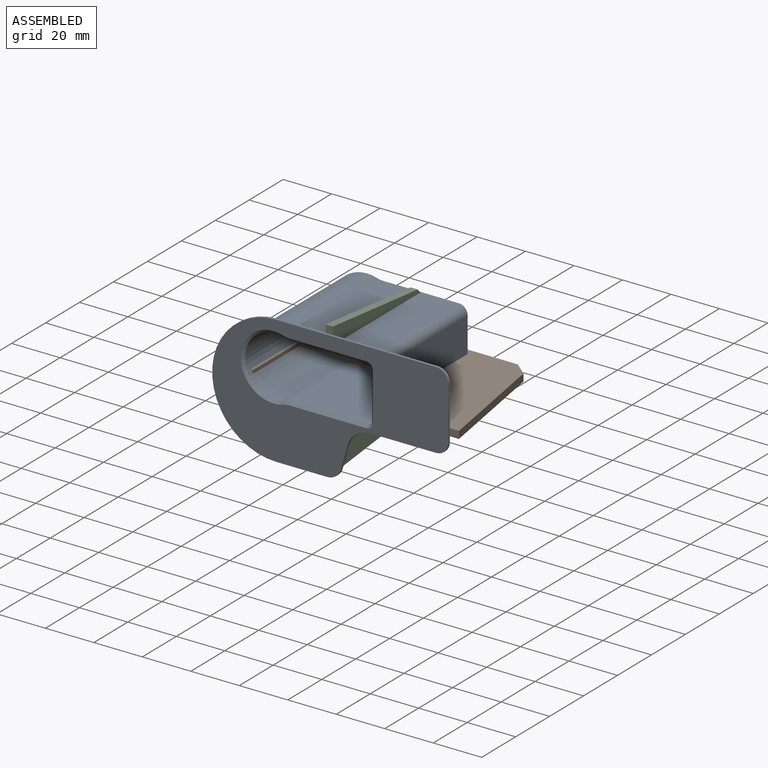
[diagram: assembled view]
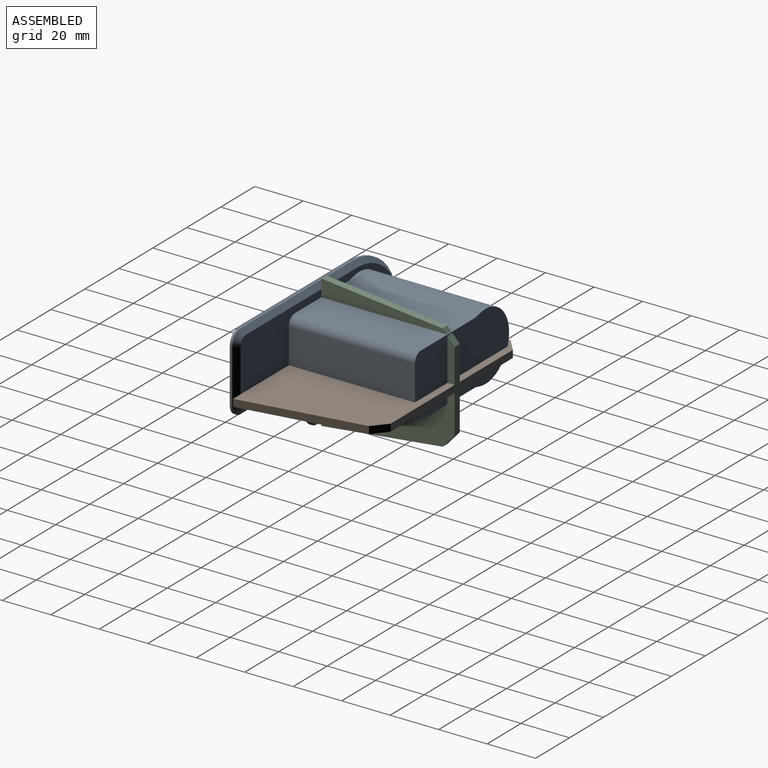
[diagram: assembled view, second angle]
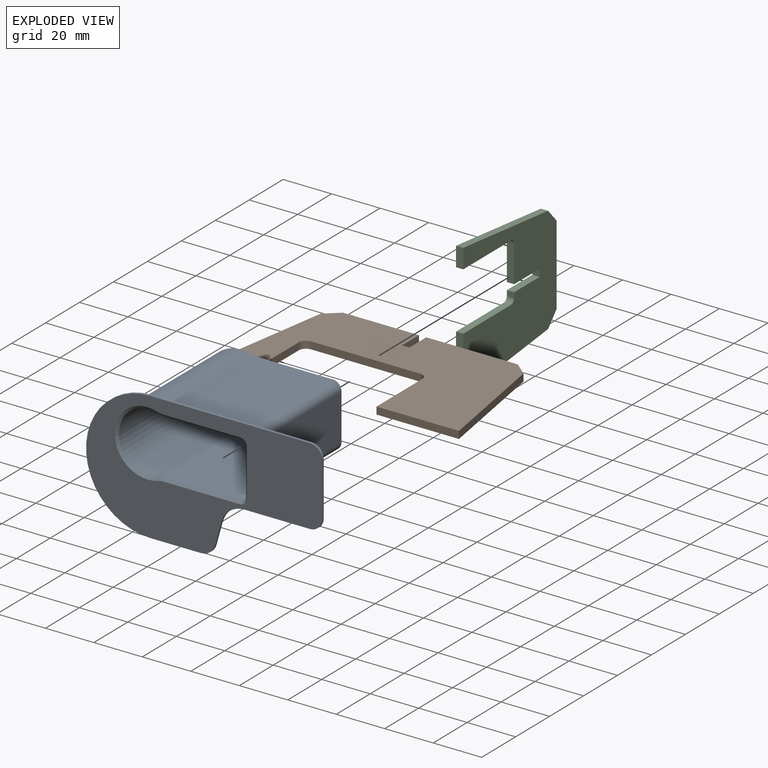
[diagram: exploded view]
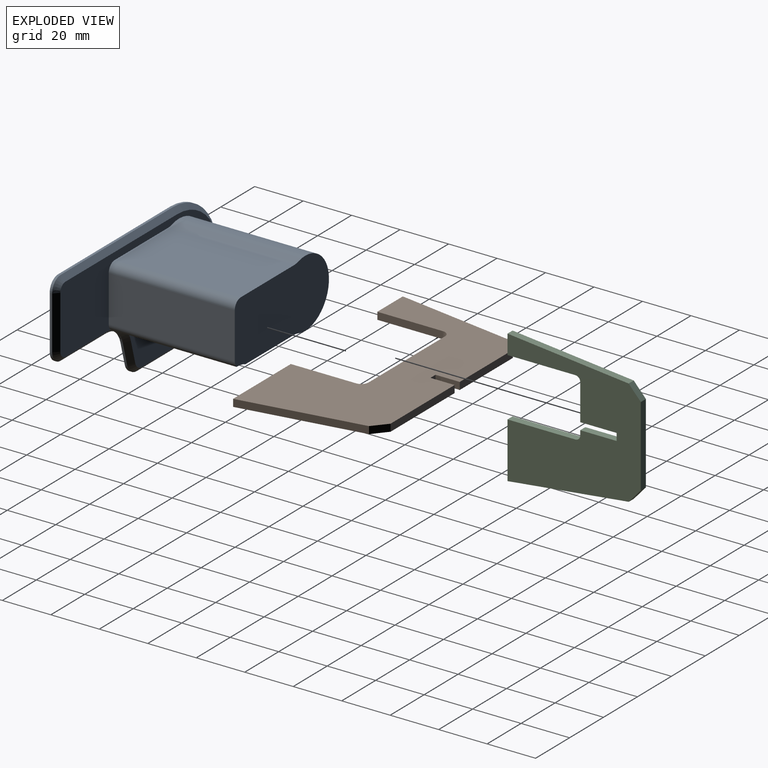
[diagram: exploded view, second angle]
ASSEMBLY  parts=3 mates=3
PART A: 52 faces, bbox 97.4x55x53 mm
  f0: plane 51x31.37mm, normal (0,0,1), area 1599.7mm2, adj f3,f4,f34,f51
  f1: plane 51x19mm, normal (-1,0,0), area 969mm2, adj f4,f5,f37,f51
  f2: plane 51x31.37mm, normal (0,0,-1), area 1599.7mm2, adj f5,f6,f33,f51
  f3: cylinder r=10mm len=51mm, axis (0,-1,0), area 152.6mm2, adj f0,f7,f32,f51
  f4: cylinder r=2mm len=51mm, axis (0,-1,0), area 160.2mm2, adj f0,f1,f36,f51
  f5: cylinder r=2mm len=51mm, axis (0,-1,0), area 160.2mm2, adj f1,f2,f35,f51
  f6: cylinder r=10mm len=51mm, axis (0,-1,0), area 152.6mm2, adj f2,f7,f31,f51
  f7: cylinder r=12.5mm len=51mm, axis (0,-1,0), area 2384.3mm2, adj f3,f6,f30,f51
  f8: cylinder r=3.5mm len=52mm, axis (0,-1,0), area 144.8mm2, adj f11,f28,f29,f39
  f9: cylinder r=9mm len=1.08mm, axis (0,1,0), area 1.1mm2, adj f10,f12,f13,f49
  f10: plane 97.36x53mm, normal (0,-1,0), area 2648.2mm2, adj f9,f12,f13,f14,f15,f16,f17,f18
  f11: plane 93.36x49mm, normal (0,1,0), area 2059.1mm2, adj f8,f22,f23,f24,f25,f26,f27,f28
  f12: plane 9.05x2.5mm, normal (0.96,0,-0.27), area 9.4mm2, adj f9,f10,f21,f47
  f13: cylinder r=6mm len=5.47mm, axis (0,-1,0), area 6.9mm2, adj f9,f10,f14,f50
  f14: plane 20.9x1mm, normal (0,0,-1), area 20.9mm2, adj f10,f13,f15,f48
  f15: cylinder r=26.5mm len=53mm, axis (0,-1,0), area 83.3mm2, adj f10,f14,f16,f46
  f16: plane 65.86x1mm, normal (0,0,1), area 65.9mm2, adj f10,f15,f17,f44
  f17: cylinder r=5mm len=5mm, axis (0,-1,0), area 7.9mm2, adj f10,f16,f18,f42
  f18: plane 22x1mm, normal (1,0,0), area 22mm2, adj f10,f17,f19,f40
  f19: cylinder r=5mm len=5mm, axis (0,-1,0), area 7.9mm2, adj f10,f18,f20,f41
  f20: plane 26.98x1mm, normal (0,0,-1), area 27mm2, adj f10,f19,f21,f43
  f21: cylinder r=10mm len=9.64mm, axis (0,-1,0), area 13mm2, adj f10,f12,f20,f45
  f22: plane 52x28.59mm, normal (0,0,-1), area 1486.5mm2, adj f11,f23,f29,f38
  f23: cylinder r=8.5mm len=52mm, axis (0,-1,0), area 132.3mm2, adj f11,f22,f24,f29
  f24: cylinder r=14mm len=52mm, axis (0,-1,0), area 2722.8mm2, adj f11,f23,f25,f29
  f25: cylinder r=8.5mm len=52mm, axis (0,-1,0), area 132.3mm2, adj f11,f24,f26,f29
  f26: plane 52x31.37mm, normal (0,0,1), area 1631.1mm2, adj f11,f25,f27,f29
  f27: cylinder r=3.5mm len=52mm, axis (0,-1,0), area 285.9mm2, adj f11,f26,f28,f29
  f28: plane 52x19mm, normal (1,0,0), area 988mm2, adj f8,f11,f27,f29
  f29: plane 55.5x28mm, normal (0,1,0), area 1385.9mm2, adj f8,f22,f23,f24,f25,f26,f27,f28
  f30: cone r=13.5mm half-angle=45deg, axis (0,-1,0), area 68.8mm2, adj f7,f10,f31,f32
  f31: cone r=9mm half-angle=45deg, axis (0,1,0), area 4mm2, adj f6,f10,f30,f33
  f32: cone r=9mm half-angle=45deg, axis (0,1,0), area 4mm2, adj f3,f10,f30,f34
  f33: plane 31.37x1mm, normal (0,-0.71,-0.71), area 44.4mm2, adj f2,f10,f31,f35
  f34: plane 31.37x1mm, normal (0,-0.71,0.71), area 44.4mm2, adj f0,f10,f32,f36
  f35: cone r=2mm half-angle=45deg, axis (0,-1,0), area 5.6mm2, adj f5,f10,f33,f37
  f36: cone r=2mm half-angle=45deg, axis (0,-1,0), area 5.6mm2, adj f4,f10,f34,f37
  f37: plane 19x1mm, normal (-0.71,-0.71,0), area 26.9mm2, adj f1,f10,f35,f36
  f38: cylinder r=12mm len=52mm, axis (0,1,0), area 256.6mm2, adj f22,f29,f39,f45
  f39: plane 52x0.43mm, normal (0,0,-1), area 22.5mm2, adj f8,f29,f38,f43
  f40: plane 22x2mm, normal (0.71,0.71,0), area 62.2mm2, adj f11,f18,f41,f42
  f41: cone r=5mm half-angle=45deg, axis (0,-1,0), area 17.8mm2, adj f11,f19,f40,f43
  f42: cone r=5mm half-angle=45deg, axis (0,-1,0), area 17.8mm2, adj f11,f17,f40,f44
  f43: plane 26.98x2mm, normal (0,0.71,-0.71), area 76.3mm2, adj f11,f20,f39,f41,f45
  f44: plane 65.86x2mm, normal (0,0.71,0.71), area 186.3mm2, adj f11,f16,f42,f46
  f45: cone r=12mm half-angle=45deg, axis (0,1,0), area 40.5mm2, adj f11,f21,f38,f43,f47
  f46: cone r=26.5mm half-angle=45deg, axis (0,-1,0), area 226.6mm2, adj f11,f15,f44,f48
  f47: plane 9.58x4.43mm, normal (0.68,0.71,-0.19), area 26.6mm2, adj f11,f12,f45,f49
  f48: plane 20.9x2mm, normal (0,0.71,-0.71), area 59.1mm2, adj f11,f14,f46,f50
  f49: cone r=9mm half-angle=45deg, axis (0,-1,0), area 2.8mm2, adj f9,f11,f47,f50
  f50: cone r=6mm half-angle=45deg, axis (0,-1,0), area 16.2mm2, adj f11,f13,f48,f49
  f51: plane 52.5x25mm, normal (0,-1,0), area 1170.6mm2, adj f0,f1,f2,f3,f4,f5,f6,f7
PART B: 18 faces, bbox 100x3x55 mm
  f0: plane 27x3mm, normal (-1,0,0), area 81mm2, adj f11,f12,f13,f16
  f1: plane 45x3mm, normal (0,0,1), area 135mm2, adj f12,f13,f16,f17
  f2: plane 27x3mm, normal (1,0,0), area 81mm2, adj f3,f12,f13,f17
  f3: plane 34x3mm, normal (0,0,1), area 102mm2, adj f2,f4,f12,f13
  f4: plane 50.12x8.46mm, normal (-0.99,0,-0.17), area 152.5mm2, adj f3,f12,f13,f14
  f5: plane 37.76x3mm, normal (0,0,-1), area 113.3mm2, adj f6,f12,f13,f14
  f6: plane 10x3mm, normal (1,0,0), area 30mm2, adj f5,f7,f12,f13
  f7: plane 3x3mm, normal (0,0,-1), area 9mm2, adj f6,f8,f12,f13
  f8: plane 10x3mm, normal (-1,0,0), area 30mm2, adj f7,f9,f12,f13
  f9: plane 31.29x3mm, normal (0,0,-1), area 93.9mm2, adj f8,f12,f13,f15
  f10: plane 50.06x7.93mm, normal (0.99,0,-0.16), area 152.1mm2, adj f11,f12,f13,f15
  f11: plane 15x3mm, normal (0,0,1), area 45mm2, adj f0,f10,f12,f13
  f12: plane 100x55mm, normal (0,-1,0), area 3424.4mm2, adj f0,f1,f2,f3,f4,f5,f6,f7
  f13: plane 100x55mm, normal (0,1,0), area 3424.4mm2, adj f0,f1,f2,f3,f4,f5,f6,f7
  f14: plane 5.77x4.88mm, normal (-0.65,0,-0.76), area 22.7mm2, adj f4,f5,f12,f13
  f15: plane 5.78x4.94mm, normal (0.65,0,-0.76), area 22.8mm2, adj f9,f10,f12,f13
  f16: cylinder r=3mm len=3mm, axis (0,-1,0), area 14.1mm2, adj f0,f1,f12,f13
  f17: cylinder r=3mm len=3mm, axis (0,-1,0), area 14.1mm2, adj f1,f2,f12,f13
PART C: 18 faces, bbox 55x3x55 mm
  f0: plane 23x3mm, normal (0,0,1), area 69mm2, adj f7,f8,f9,f12
  f1: plane 8x3mm, normal (0,0,1), area 24mm2, adj f2,f8,f9,f14
  f2: plane 49.99x5.25mm, normal (-0.99,0,-0.1), area 150.8mm2, adj f1,f8,f9,f10
  f3: plane 32.96x3mm, normal (0,0,-1), area 98.9mm2, adj f8,f9,f10,f11
  f4: plane 15x3mm, normal (-1,0,0), area 45mm2, adj f5,f8,f9,f13
  f5: plane 3x3mm, normal (0,0,1), area 9mm2, adj f4,f6,f8,f9
  f6: plane 15x3mm, normal (1,0,0), area 45mm2, adj f5,f8,f9,f15
  f7: plane 50.03x5.66mm, normal (0.99,0,-0.11), area 151.1mm2, adj f0,f8,f9,f11
  f8: plane 55x55mm, normal (0,-1,0), area 1906.7mm2, adj f0,f1,f2,f3,f4,f5,f6,f7
  f9: plane 55x55mm, normal (0,1,0), area 1906.7mm2, adj f0,f1,f2,f3,f4,f5,f6,f7
  f10: plane 5.57x5.01mm, normal (-0.67,0,-0.74), area 22.5mm2, adj f2,f3,f8,f9
  f11: plane 5.56x4.97mm, normal (0.67,0,-0.75), area 22.4mm2, adj f3,f7,f8,f9
  f12: plane 28x3mm, normal (-1,0,0), area 84mm2, adj f0,f8,f9,f17
  f13: plane 3x2mm, normal (0,0,1), area 6mm2, adj f4,f8,f9,f17
  f14: plane 28x3mm, normal (1,0,0), area 84mm2, adj f1,f8,f9,f16
  f15: plane 15x3mm, normal (0,0,1), area 45mm2, adj f6,f8,f9,f16
  f16: cylinder r=2mm len=3mm, axis (0,1,0), area 9.4mm2, adj f8,f9,f14,f15
  f17: cylinder r=2mm len=3mm, axis (0,-1,0), area 9.4mm2, adj f8,f9,f12,f13
PLACE A at identity fixed
PLACE B rot(axis=(0,-0.71,0.71),180deg) t=(20.35,0,3.28)mm
PLACE C rot(axis=(0.58,0.58,-0.58),120deg) t=(0.6,0,3.87)mm
MATE planar B.f12 <-> C.f6  axis (0,0,1) through (6.66,31.38,6.28)mm
MATE planar B.f8 <-> C.f8  axis (1,0,0) through (-2.4,50,4.78)mm
MATE planar C.f1 <-> A.f11  axis (0,-1,0) through (-0.9,0,27.28)mm
